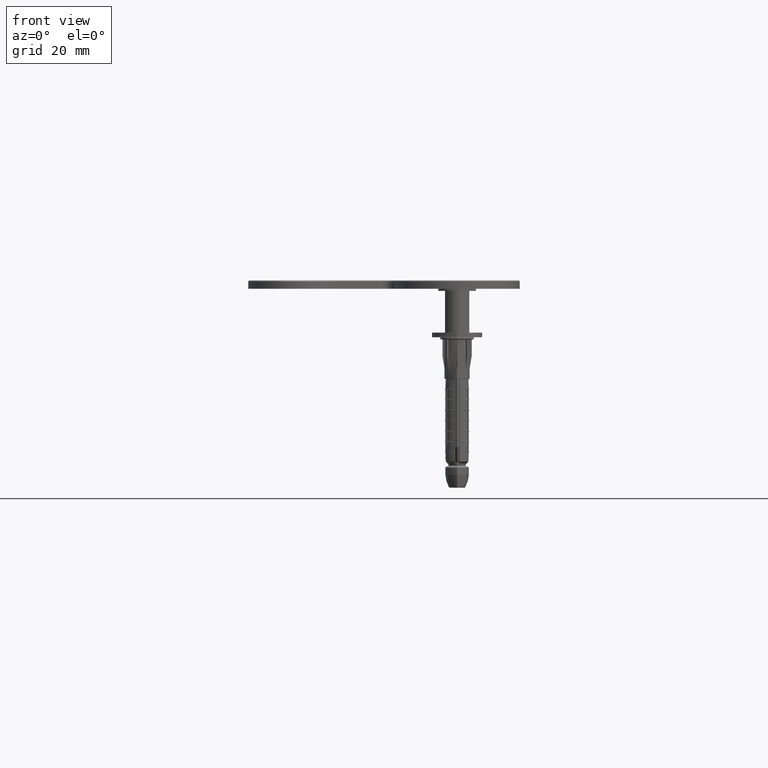
[diagram: clean part render]
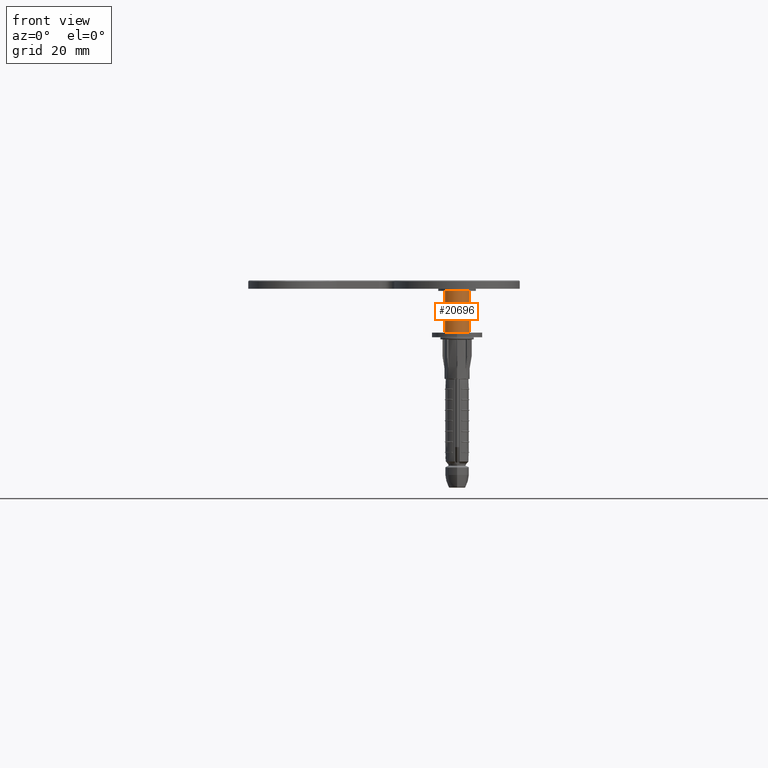
[diagram: same view with one face highlighted and labeled with its STEP entity id]
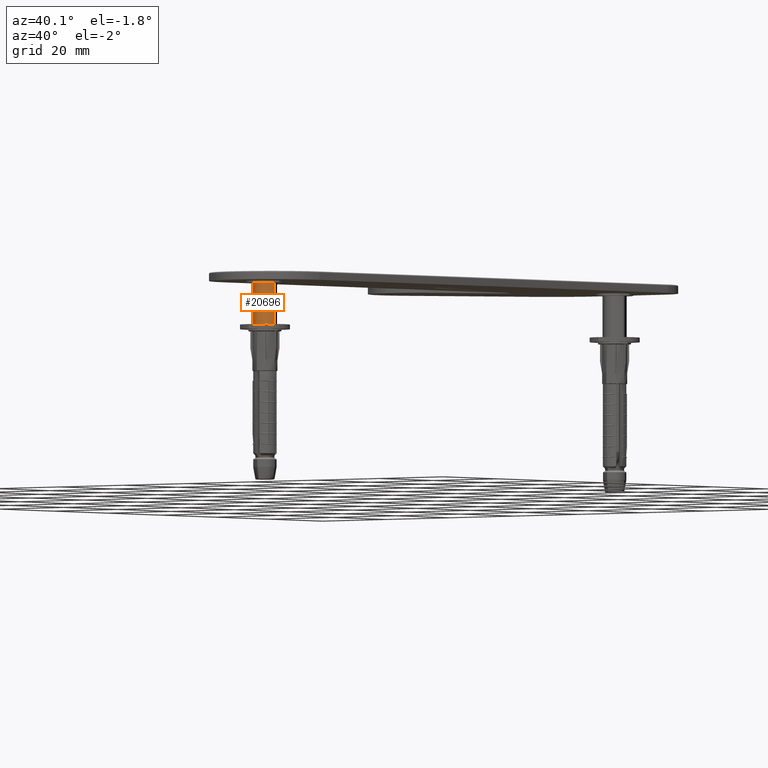
[diagram: same view with one face highlighted and labeled with its STEP entity id]
A machine part, front view. The second image highlights one B-rep face of the part: STEP entity #20696.
A second angle (auxiliary view) of the same face is appended — the face is thin or edge-on in the first view.
In plain terms, the highlighted cylindrical surface (edge-blend (fillet) strip) has radius 2.9 mm, axis along (0, 0, 1).
Its self-contained STEP definition (entity closure, byte-faithful):
#3763 = ORIENTED_EDGE ( 'NONE', *, *, #7397, .F. ) ;
#5129 = CARTESIAN_POINT ( 'NONE',  ( 2.899999999999999911, 12.50000000000409095, -10.50000000000000000 ) ) ;
#5514 = DIRECTION ( 'NONE',  ( -0.000000000000000000, -0.000000000000000000, 1.000000000000000000 ) ) ;
#6837 = ORIENTED_EDGE ( 'NONE', *, *, #6985, .F. ) ;
#6985 = EDGE_CURVE ( 'NONE', #30570, #7719, #28125, .T. ) ;
#7202 = DIRECTION ( 'NONE',  ( 0.000000000000000000, 0.000000000000000000, -1.000000000000000000 ) ) ;
#7397 = EDGE_CURVE ( 'NONE', #13894, #30570, #13639, .T. ) ;
#7719 = VERTEX_POINT ( 'NONE', #14965 ) ;
#8172 = CARTESIAN_POINT ( 'NONE',  ( -2.899999999999999911, 12.50000000000409095, -10.50000000000000000 ) ) ;
#8590 = CIRCLE ( 'NONE', #16993, 2.899999999999999911 ) ;
#10136 = CYLINDRICAL_SURFACE ( 'NONE', #31566, 2.899999999999999911 ) ;
#10702 = EDGE_LOOP ( 'NONE', ( #6837, #3763, #35660, #36695 ) ) ;
#10980 = CARTESIAN_POINT ( 'NONE',  ( 2.899999999999999911, 12.50000000000409095, -10.50000000000000000 ) ) ;
#13639 = CIRCLE ( 'NONE', #27568, 2.899999999999999911 ) ;
#13894 = VERTEX_POINT ( 'NONE', #10980 ) ;
#14965 = CARTESIAN_POINT ( 'NONE',  ( -2.899999999999999911, 12.50000000000409095, -0.5000000000000000000 ) ) ;
#15644 = CARTESIAN_POINT ( 'NONE',  ( 0.000000000000000000, 12.50000000000409095, -10.50000000000000000 ) ) ;
#16192 = CARTESIAN_POINT ( 'NONE',  ( -2.899999999999999911, 12.50000000000409095, -10.50000000000000000 ) ) ;
#16464 = DIRECTION ( 'NONE',  ( -0.000000000000000000, -0.000000000000000000, 1.000000000000000000 ) ) ;
#16904 = CARTESIAN_POINT ( 'NONE',  ( 0.000000000000000000, 12.50000000000409095, -10.50000000000000000 ) ) ;
#16993 = AXIS2_PLACEMENT_3D ( 'NONE', #19314, #7202, #28066 ) ;
#18873 = DIRECTION ( 'NONE',  ( 0.000000000000000000, 0.000000000000000000, -1.000000000000000000 ) ) ;
#19314 = CARTESIAN_POINT ( 'NONE',  ( 0.000000000000000000, 12.50000000000409095, -0.5000000000000000000 ) ) ;
#20696 = ADVANCED_FACE ( 'NONE', ( #33256 ), #10136, .T. ) ;
#21127 = CARTESIAN_POINT ( 'NONE',  ( 2.899999999999999911, 12.50000000000409095, -0.5000000000000000000 ) ) ;
#23053 = LINE ( 'NONE', #5129, #29979 ) ;
#24158 = EDGE_CURVE ( 'NONE', #38152, #7719, #8590, .T. ) ;
#24716 = DIRECTION ( 'NONE',  ( -1.000000000000000000, 0.000000000000000000, 0.000000000000000000 ) ) ;
#27568 = AXIS2_PLACEMENT_3D ( 'NONE', #15644, #18873, #24716 ) ;
#27621 = VECTOR ( 'NONE', #16464, 1000.000000000000000 ) ;
#28066 = DIRECTION ( 'NONE',  ( -1.000000000000000000, 0.000000000000000000, 0.000000000000000000 ) ) ;
#28125 = LINE ( 'NONE', #16192, #27621 ) ;
#29979 = VECTOR ( 'NONE', #5514, 1000.000000000000000 ) ;
#30570 = VERTEX_POINT ( 'NONE', #8172 ) ;
#31566 = AXIS2_PLACEMENT_3D ( 'NONE', #16904, #35100, #32177 ) ;
#32177 = DIRECTION ( 'NONE',  ( 1.000000000000000000, 0.000000000000000000, 0.000000000000000000 ) ) ;
#33256 = FACE_OUTER_BOUND ( 'NONE', #10702, .T. ) ;
#35100 = DIRECTION ( 'NONE',  ( -0.000000000000000000, -0.000000000000000000, 1.000000000000000000 ) ) ;
#35236 = EDGE_CURVE ( 'NONE', #13894, #38152, #23053, .T. ) ;
#35660 = ORIENTED_EDGE ( 'NONE', *, *, #35236, .T. ) ;
#36695 = ORIENTED_EDGE ( 'NONE', *, *, #24158, .T. ) ;
#38152 = VERTEX_POINT ( 'NONE', #21127 ) ;